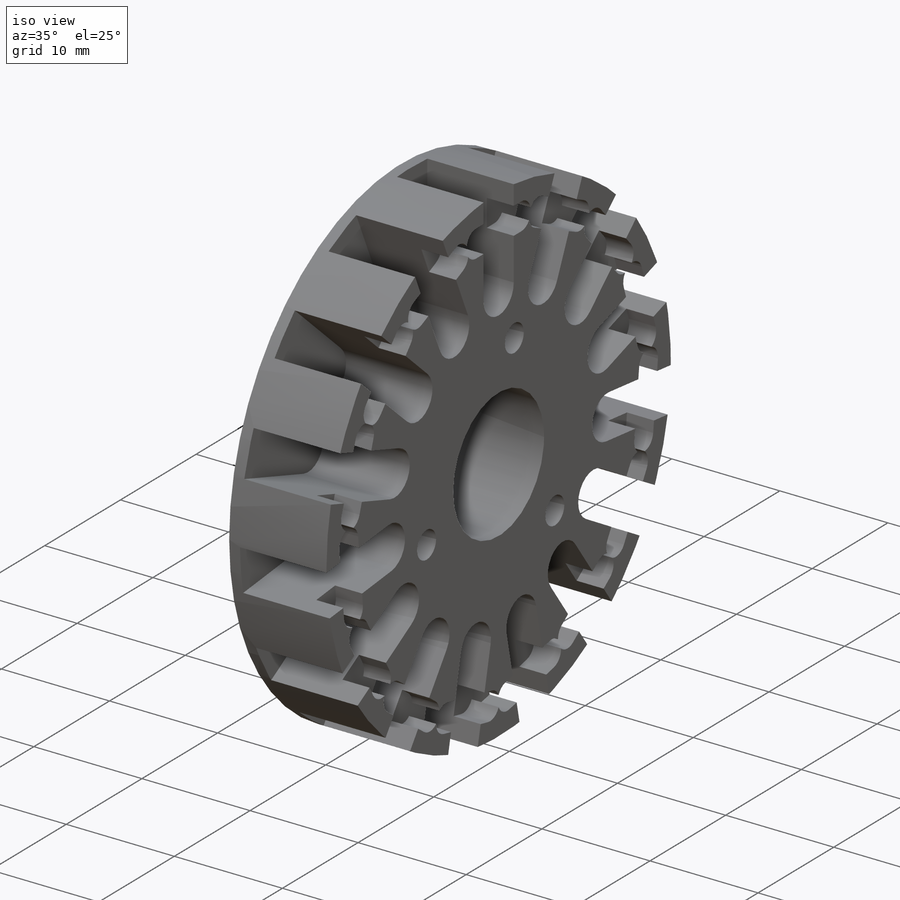
[diagram: iso view]
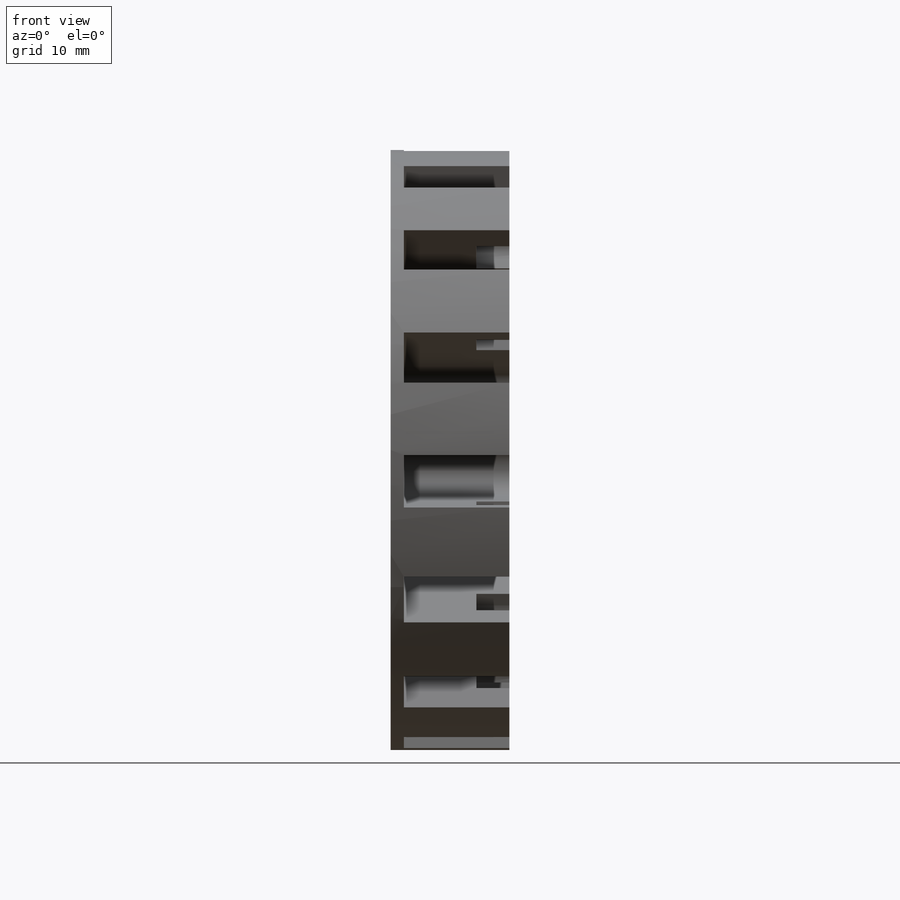
[diagram: front view]
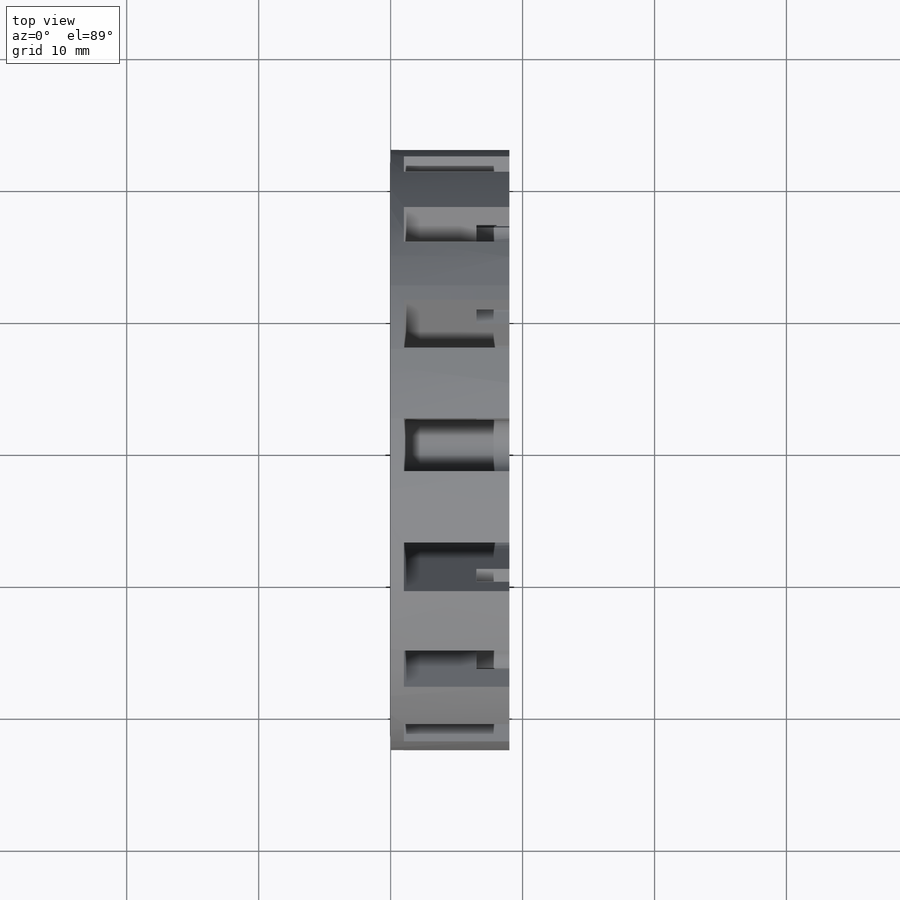
[diagram: top view]
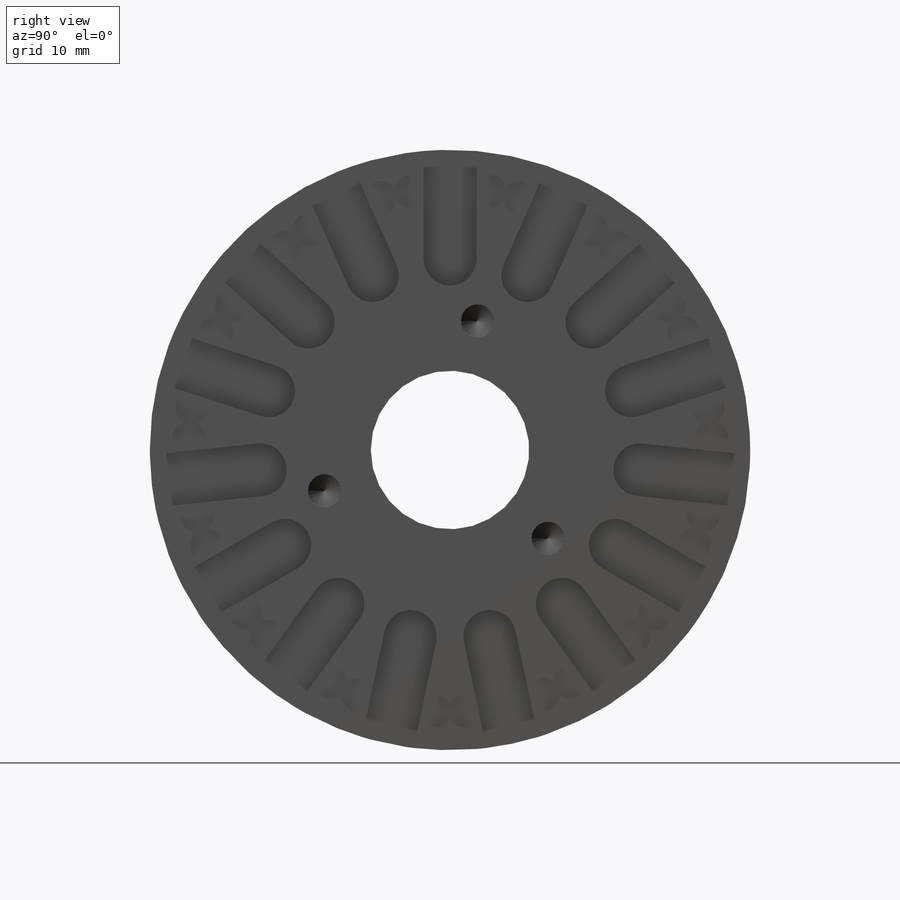
[diagram: right view]
SOLIDWORKS PART (.sldprt)
format: sldprt  version: not decoded by parser v0  size: 500,736 bytes
history: native  units: mm
features: sketch x8, cut_extrude x3, pattern_circular x3, hole x2, material x1, extrude x1 (+11 scaffold rows collapsed)
feature tree (29):
  scaffold x11  (default folders/planes/origin — collapsed)
  material  "Material <not specified>"
  sketch  "Sketch1"  dims[D1=45.5mm D2=12.01mm]
  extrude  "Boss-Extrude1"  Depth=9mm
  sketch  "Sketch2"  dims[D1=4.0mm D2=8.3mm]
  cut_extrude  "Cut-Extrude1"  Depth=8mm
  sketch  "Sketch3"  dims[D1=1.25mm D2=5.15mm D3=6.0mm]
  cut_extrude  "Cut-Extrude2"  Depth=2.5mm
  pattern_circular  "CirPattern1"  Count=15 Angle=360deg
  hole  "Tap Drill for M3x0.5 Tap1"  Diameter=2.5mm Depth=7mm
  sketch  "Sketch6"  dims[c1.D1=~9.16241mm c2.D1=78.0deg c2.D2=10.0mm c3.D1=10.0mm c4.D1=78.0deg c5.D1=~9.781476mm c6.D1=78.0deg]
  sketch  "Sketch5"  dims[hole-wizard template sketch: 50 standard entries collapsed; hole parameters above]
  pattern_circular  "CirPattern2"  Count=3 Angle=360deg
  sketch  "Sketch8"  dims[D1=13.6mm]
  cut_extrude  "Cut-Extrude4"  Depth=0.8mm
  hole  "Tap Drill for M2x0.4 Tap1"  Diameter=1.6mm Depth=5.5mm
  sketch  "Sketch10"  dims[c1.D1=6.005mm c2.D1=78.0deg c2.D2=20.75mm]
  sketch  "Sketch9"  dims[hole-wizard template sketch: 47 standard entries collapsed; hole parameters kept: c15.Hole Depth=5.5mm c15.D3=~14.816244mm c15.Drill Angle=118.0deg]
  pattern_circular  "CirPattern3"  Count=5 Angle=72deg
decode coverage: 17 of 17 modeling features carry decoded parameters
note: ~ marks probable driven/reference dimensions
note: suppression state not decoded; provenance and decode notes live in map.json
